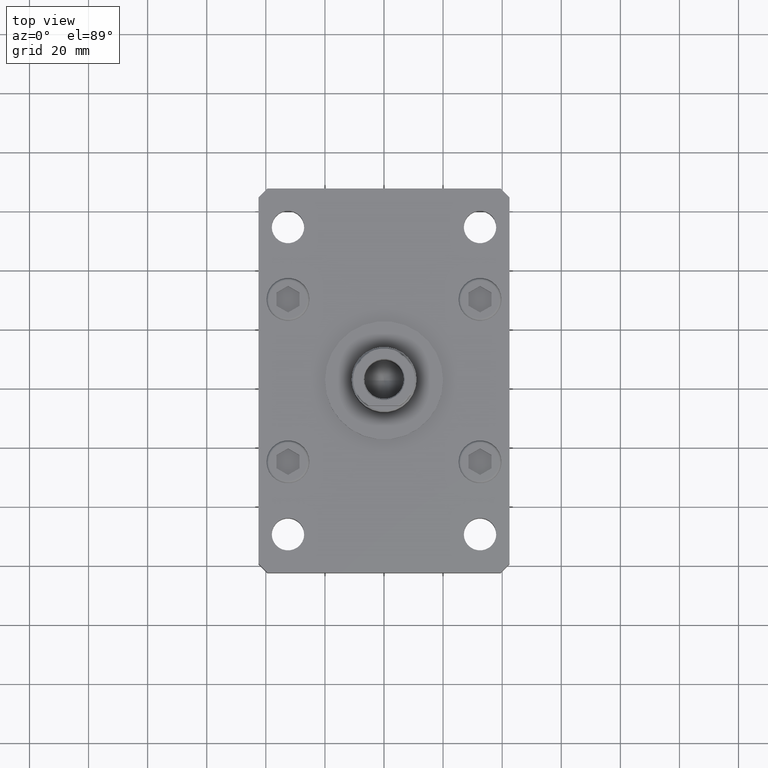
[diagram: clean part render]
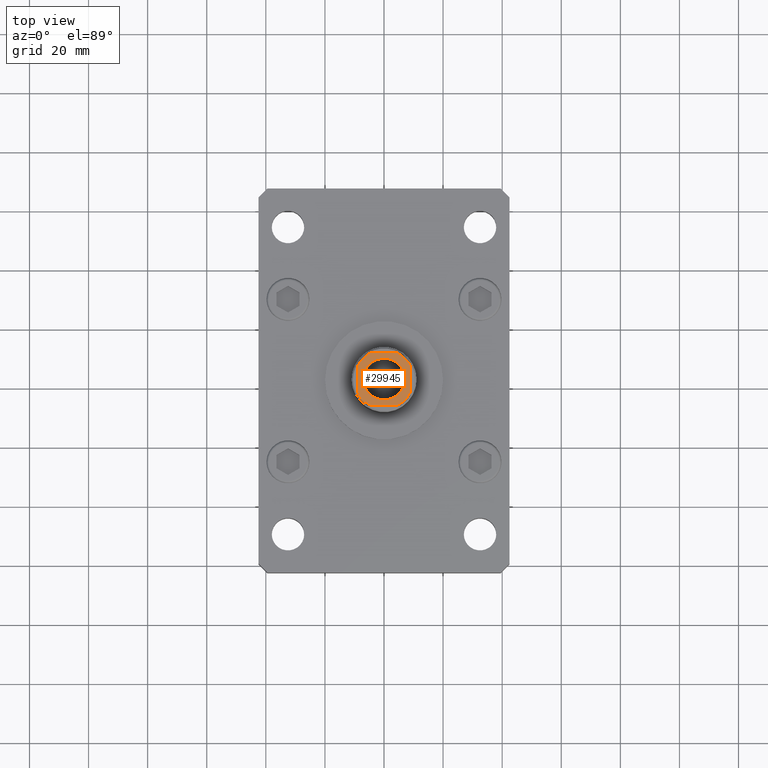
[diagram: same view with one face highlighted and labeled with its STEP entity id]
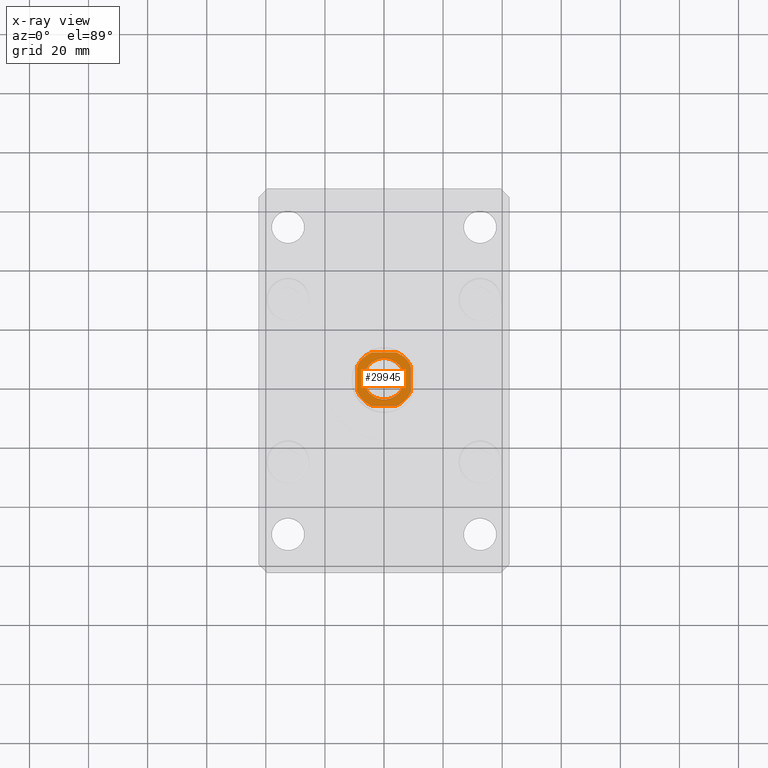
[diagram: x-ray of the same camera — body ghosted, the highlighted face saturated]
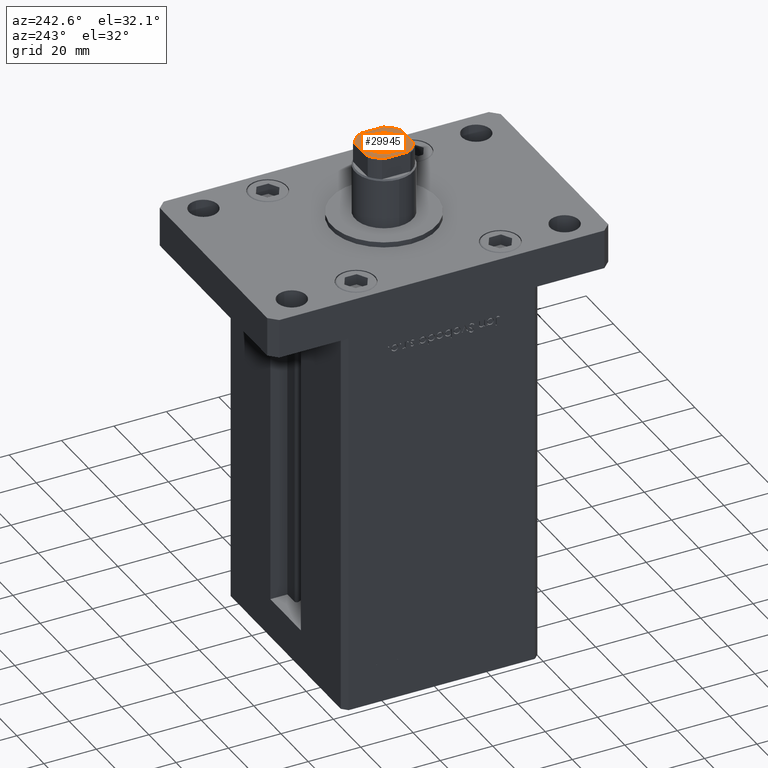
[diagram: same view with one face highlighted and labeled with its STEP entity id]
A machine part, top view. The second image highlights one B-rep face of the part: STEP entity #29945.
The next image is the same camera in x-ray: the body ghosted, the highlighted face saturated — about 0% of this face is hidden behind the body in this view.
A second angle (auxiliary view) of the same face is appended — the face is thin or edge-on in the first view.
In plain terms, the highlighted planar face has unit normal (0, 0, 1).
Its self-contained STEP definition (entity closure, byte-faithful):
#476 = EDGE_LOOP ( 'NONE', ( #9536, #5474, #6645, #52422, #35804, #6235, #50594, #2992 ) ) ;
#2025 = DIRECTION ( 'NONE',  ( 0.000000000000000000, -0.000000000000000000, -1.000000000000000000 ) ) ;
#2992 = ORIENTED_EDGE ( 'NONE', *, *, #31857, .T. ) ;
#4416 = CARTESIAN_POINT ( 'NONE',  ( 0.000000000000000000, 0.000000000000000000, 170.0000000000000000 ) ) ;
#4424 = VERTEX_POINT ( 'NONE', #31898 ) ;
#4683 = DIRECTION ( 'NONE',  ( -0.000000000000000000, 0.000000000000000000, 1.000000000000000000 ) ) ;
#4885 = EDGE_CURVE ( 'NONE', #50121, #26396, #5675, .T. ) ;
#5474 = ORIENTED_EDGE ( 'NONE', *, *, #13164, .T. ) ;
#5675 = LINE ( 'NONE', #25751, #27420 ) ;
#6235 = ORIENTED_EDGE ( 'NONE', *, *, #37957, .T. ) ;
#6430 = DIRECTION ( 'NONE',  ( 1.000000000000000000, 0.000000000000000000, 0.000000000000000000 ) ) ;
#6645 = ORIENTED_EDGE ( 'NONE', *, *, #38448, .T. ) ;
#7205 = DIRECTION ( 'NONE',  ( 1.000000000000000000, 0.000000000000000000, 0.000000000000000000 ) ) ;
#7490 = ORIENTED_EDGE ( 'NONE', *, *, #52185, .T. ) ;
#7726 = CARTESIAN_POINT ( 'NONE',  ( -8.999999999999998224, -9.000000000000001776, 170.0000000000000000 ) ) ;
#8839 = LINE ( 'NONE', #16440, #50270 ) ;
#9232 = CARTESIAN_POINT ( 'NONE',  ( -9.000000000000000000, 8.999999999999998224, 170.0000000000000000 ) ) ;
#9536 = ORIENTED_EDGE ( 'NONE', *, *, #32232, .T. ) ;
#9687 = DIRECTION ( 'NONE',  ( -0.000000000000000000, 0.000000000000000000, 1.000000000000000000 ) ) ;
#9956 = CARTESIAN_POINT ( 'NONE',  ( -7.050000000000028244, 8.633759933988873502E-16, 170.0000000000000000 ) ) ;
#11010 = CARTESIAN_POINT ( 'NONE',  ( 0.000000000000000000, 0.000000000000000000, 170.0000000000000000 ) ) ;
#11330 = DIRECTION ( 'NONE',  ( 1.000000000000000000, 0.000000000000000000, 0.000000000000000000 ) ) ;
#12751 = AXIS2_PLACEMENT_3D ( 'NONE', #47647, #30049, #6430 ) ;
#13164 = EDGE_CURVE ( 'NONE', #4424, #29305, #43964, .T. ) ;
#13977 = CARTESIAN_POINT ( 'NONE',  ( 0.000000000000000000, 0.000000000000000000, 170.0000000000000000 ) ) ;
#14805 = CIRCLE ( 'NONE', #47724, 10.00000000000000000 ) ;
#14825 = DIRECTION ( 'NONE',  ( 0.000000000000000000, -0.000000000000000000, -1.000000000000000000 ) ) ;
#14881 = DIRECTION ( 'NONE',  ( -0.000000000000000000, 0.000000000000000000, 1.000000000000000000 ) ) ;
#16440 = CARTESIAN_POINT ( 'NONE',  ( -9.000000000000000000, 8.999999999999998224, 170.0000000000000000 ) ) ;
#16645 = DIRECTION ( 'NONE',  ( 1.000000000000000000, 0.000000000000000000, 0.000000000000000000 ) ) ;
#16770 = EDGE_CURVE ( 'NONE', #24731, #17291, #43269, .T. ) ;
#17291 = VERTEX_POINT ( 'NONE', #9956 ) ;
#18090 = CARTESIAN_POINT ( 'NONE',  ( 0.000000000000000000, 0.000000000000000000, 170.0000000000000000 ) ) ;
#19311 = VERTEX_POINT ( 'NONE', #22874 ) ;
#22874 = CARTESIAN_POINT ( 'NONE',  ( 4.358898943540671311, -9.000000000000001776, 170.0000000000000000 ) ) ;
#23472 = VECTOR ( 'NONE', #16645, 1000.000000000000000 ) ;
#24134 = CIRCLE ( 'NONE', #39733, 10.00000000000000000 ) ;
#24731 = VERTEX_POINT ( 'NONE', #47872 ) ;
#25751 = CARTESIAN_POINT ( 'NONE',  ( 9.000000000000000000, 8.999999999999998224, 170.0000000000000000 ) ) ;
#25954 = DIRECTION ( 'NONE',  ( 1.000000000000000000, 0.000000000000000000, 0.000000000000000000 ) ) ;
#26396 = VERTEX_POINT ( 'NONE', #49155 ) ;
#27420 = VECTOR ( 'NONE', #38775, 1000.000000000000000 ) ;
#27511 = CIRCLE ( 'NONE', #48264, 10.00000000000000000 ) ;
#27526 = AXIS2_PLACEMENT_3D ( 'NONE', #39130, #46703, #30188 ) ;
#28476 = EDGE_CURVE ( 'NONE', #19311, #50121, #27511, .T. ) ;
#28575 = VERTEX_POINT ( 'NONE', #52774 ) ;
#29305 = VERTEX_POINT ( 'NONE', #36501 ) ;
#29388 = DIRECTION ( 'NONE',  ( 1.000000000000000000, 0.000000000000000000, 0.000000000000000000 ) ) ;
#29945 = ADVANCED_FACE ( 'NONE', ( #38998, #38724 ), #43054, .T. ) ;
#30049 = DIRECTION ( 'NONE',  ( -0.000000000000000000, 0.000000000000000000, 1.000000000000000000 ) ) ;
#30188 = DIRECTION ( 'NONE',  ( 1.000000000000000000, 0.000000000000000000, 0.000000000000000000 ) ) ;
#30539 = DIRECTION ( 'NONE',  ( 1.000000000000000000, 0.000000000000000000, 0.000000000000000000 ) ) ;
#31857 = EDGE_CURVE ( 'NONE', #44466, #28575, #24134, .T. ) ;
#31898 = CARTESIAN_POINT ( 'NONE',  ( -9.000000000000000000, -4.358898943540675752, 170.0000000000000000 ) ) ;
#32232 = EDGE_CURVE ( 'NONE', #28575, #4424, #33380, .T. ) ;
#32928 = ORIENTED_EDGE ( 'NONE', *, *, #16770, .T. ) ;
#32994 = DIRECTION ( 'NONE',  ( -1.000000000000000000, -0.000000000000000000, -0.000000000000000000 ) ) ;
#33380 = LINE ( 'NONE', #9232, #46633 ) ;
#34166 = CIRCLE ( 'NONE', #35028, 7.050000000000028244 ) ;
#35028 = AXIS2_PLACEMENT_3D ( 'NONE', #11010, #14825, #7205 ) ;
#35804 = ORIENTED_EDGE ( 'NONE', *, *, #4885, .T. ) ;
#36501 = CARTESIAN_POINT ( 'NONE',  ( -4.358898943540671311, -9.000000000000001776, 170.0000000000000000 ) ) ;
#37208 = EDGE_CURVE ( 'NONE', #44141, #44466, #8839, .T. ) ;
#37957 = EDGE_CURVE ( 'NONE', #26396, #44141, #14805, .T. ) ;
#38448 = EDGE_CURVE ( 'NONE', #29305, #19311, #53540, .T. ) ;
#38724 = FACE_OUTER_BOUND ( 'NONE', #476, .T. ) ;
#38775 = DIRECTION ( 'NONE',  ( -9.637352644315595243E-17, 1.000000000000000000, -0.000000000000000000 ) ) ;
#38998 = FACE_BOUND ( 'NONE', #52660, .T. ) ;
#39130 = CARTESIAN_POINT ( 'NONE',  ( 0.000000000000000000, 0.000000000000000000, 170.0000000000000000 ) ) ;
#39733 = AXIS2_PLACEMENT_3D ( 'NONE', #4416, #4683, #29388 ) ;
#40557 = CARTESIAN_POINT ( 'NONE',  ( -4.358898943540678417, 8.999999999999998224, 170.0000000000000000 ) ) ;
#42331 = DIRECTION ( 'NONE',  ( 9.637352644315595243E-17, -1.000000000000000000, 0.000000000000000000 ) ) ;
#42402 = AXIS2_PLACEMENT_3D ( 'NONE', #13977, #2025, #30539 ) ;
#43054 = PLANE ( 'NONE',  #12751 ) ;
#43269 = CIRCLE ( 'NONE', #42402, 7.050000000000028244 ) ;
#43964 = CIRCLE ( 'NONE', #27526, 10.00000000000000000 ) ;
#44141 = VERTEX_POINT ( 'NONE', #51089 ) ;
#44466 = VERTEX_POINT ( 'NONE', #40557 ) ;
#46633 = VECTOR ( 'NONE', #42331, 1000.000000000000000 ) ;
#46703 = DIRECTION ( 'NONE',  ( -0.000000000000000000, 0.000000000000000000, 1.000000000000000000 ) ) ;
#47647 = CARTESIAN_POINT ( 'NONE',  ( 0.000000000000000000, 0.000000000000000000, 170.0000000000000000 ) ) ;
#47724 = AXIS2_PLACEMENT_3D ( 'NONE', #52293, #14881, #11330 ) ;
#47872 = CARTESIAN_POINT ( 'NONE',  ( 7.050000000000028244, 0.000000000000000000, 170.0000000000000000 ) ) ;
#48264 = AXIS2_PLACEMENT_3D ( 'NONE', #18090, #9687, #25954 ) ;
#49155 = CARTESIAN_POINT ( 'NONE',  ( 9.000000000000000000, 4.358898943540675752, 170.0000000000000000 ) ) ;
#49524 = CARTESIAN_POINT ( 'NONE',  ( 9.000000000000001776, -4.358898943540675752, 170.0000000000000000 ) ) ;
#50121 = VERTEX_POINT ( 'NONE', #49524 ) ;
#50270 = VECTOR ( 'NONE', #32994, 1000.000000000000000 ) ;
#50594 = ORIENTED_EDGE ( 'NONE', *, *, #37208, .T. ) ;
#51089 = CARTESIAN_POINT ( 'NONE',  ( 4.358898943540677529, 8.999999999999998224, 170.0000000000000000 ) ) ;
#52185 = EDGE_CURVE ( 'NONE', #17291, #24731, #34166, .T. ) ;
#52293 = CARTESIAN_POINT ( 'NONE',  ( 0.000000000000000000, 0.000000000000000000, 170.0000000000000000 ) ) ;
#52422 = ORIENTED_EDGE ( 'NONE', *, *, #28476, .T. ) ;
#52660 = EDGE_LOOP ( 'NONE', ( #32928, #7490 ) ) ;
#52774 = CARTESIAN_POINT ( 'NONE',  ( -9.000000000000000000, 4.358898943540674864, 170.0000000000000000 ) ) ;
#53540 = LINE ( 'NONE', #7726, #23472 ) ;